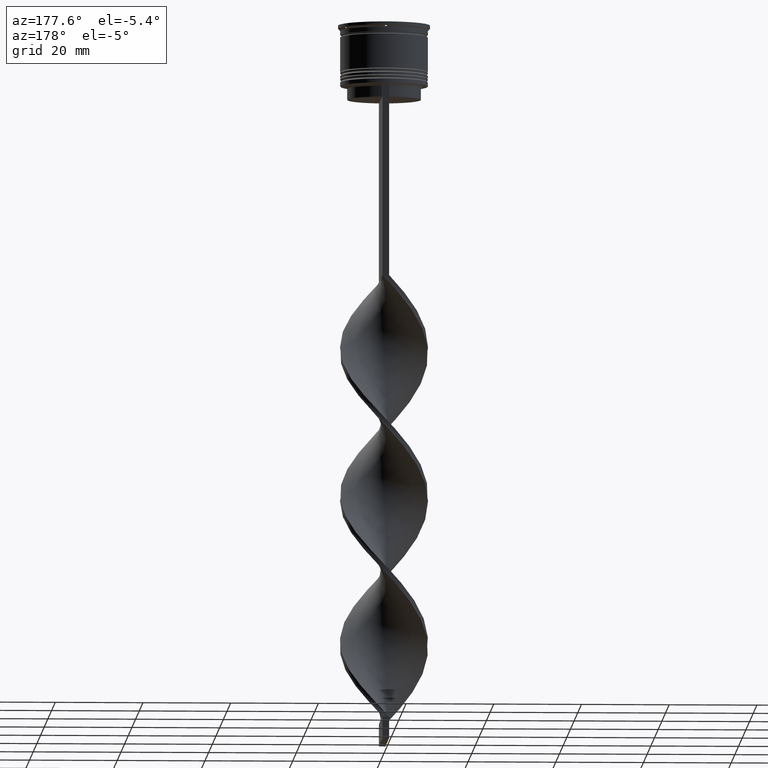
[diagram: clean part render]
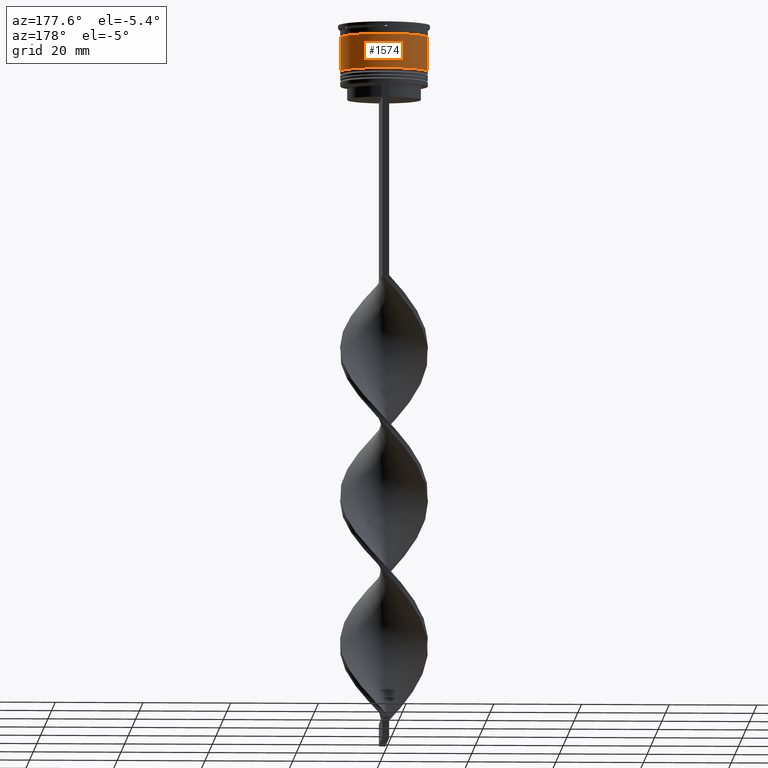
[diagram: same view with one face highlighted and labeled with its STEP entity id]
A machine part, auxiliary view. The second image highlights one B-rep face of the part: STEP entity #1574.
In plain terms, the highlighted cylindrical surface (partial cylindrical patch) has radius 10 mm, axis along (-0, -0, 1).
Its self-contained STEP definition (entity closure, byte-faithful):
#104 = EDGE_CURVE ( 'NONE', #3472, #1056, #2361, .T. ) ;
#126 = AXIS2_PLACEMENT_3D ( 'NONE', #1318, #2220, #3410 ) ;
#293 = ORIENTED_EDGE ( 'NONE', *, *, #1813, .T. ) ;
#340 = ORIENTED_EDGE ( 'NONE', *, *, #2208, .F. ) ;
#378 = ORIENTED_EDGE ( 'NONE', *, *, #104, .F. ) ;
#390 = DIRECTION ( 'NONE',  ( 1.000000000000000000, 0.000000000000000000, 0.000000000000000000 ) ) ;
#443 = CARTESIAN_POINT ( 'NONE',  ( -10.00000000000000000, 1.224646799147353256E-15, 0.000000000000000000 ) ) ;
#464 = VECTOR ( 'NONE', #2294, 1000.000000000000000 ) ;
#726 = EDGE_LOOP ( 'NONE', ( #2157, #293, #378, #340 ) ) ;
#950 = LINE ( 'NONE', #1844, #985 ) ;
#985 = VECTOR ( 'NONE', #2724, 1000.000000000000000 ) ;
#1056 = VERTEX_POINT ( 'NONE', #2052 ) ;
#1139 = CARTESIAN_POINT ( 'NONE',  ( 9.999999999999998224, 0.000000000000000000, -2.700000000000001954 ) ) ;
#1318 = CARTESIAN_POINT ( 'NONE',  ( 0.000000000000000000, 0.000000000000000000, -2.700000000000001954 ) ) ;
#1574 = ADVANCED_FACE ( 'NONE', ( #2188 ), #2756, .T. ) ;
#1813 = EDGE_CURVE ( 'NONE', #2348, #1056, #3427, .T. ) ;
#1844 = CARTESIAN_POINT ( 'NONE',  ( 10.00000000000000000, 0.000000000000000000, 0.000000000000000000 ) ) ;
#1885 = CIRCLE ( 'NONE', #1939, 10.00000000000000178 ) ;
#1905 = DIRECTION ( 'NONE',  ( -0.000000000000000000, -0.000000000000000000, 1.000000000000000000 ) ) ;
#1939 = AXIS2_PLACEMENT_3D ( 'NONE', #2172, #2815, #2436 ) ;
#2052 = CARTESIAN_POINT ( 'NONE',  ( -9.999999999999998224, 1.224646799147353256E-15, -2.700000000000001954 ) ) ;
#2157 = ORIENTED_EDGE ( 'NONE', *, *, #3666, .T. ) ;
#2172 = CARTESIAN_POINT ( 'NONE',  ( 0.000000000000000000, 0.000000000000000000, -10.50000000000000000 ) ) ;
#2188 = FACE_OUTER_BOUND ( 'NONE', #726, .T. ) ;
#2208 = EDGE_CURVE ( 'NONE', #2630, #3472, #950, .T. ) ;
#2220 = DIRECTION ( 'NONE',  ( -0.000000000000000000, -0.000000000000000000, 1.000000000000000000 ) ) ;
#2294 = DIRECTION ( 'NONE',  ( -0.000000000000000000, -0.000000000000000000, 1.000000000000000000 ) ) ;
#2348 = VERTEX_POINT ( 'NONE', #2994 ) ;
#2361 = CIRCLE ( 'NONE', #126, 9.999999999999998224 ) ;
#2436 = DIRECTION ( 'NONE',  ( 1.000000000000000000, 0.000000000000000000, 0.000000000000000000 ) ) ;
#2527 = CARTESIAN_POINT ( 'NONE',  ( 0.000000000000000000, 0.000000000000000000, 0.000000000000000000 ) ) ;
#2630 = VERTEX_POINT ( 'NONE', #3531 ) ;
#2724 = DIRECTION ( 'NONE',  ( -0.000000000000000000, -0.000000000000000000, 1.000000000000000000 ) ) ;
#2756 = CYLINDRICAL_SURFACE ( 'NONE', #3250, 10.00000000000000000 ) ;
#2815 = DIRECTION ( 'NONE',  ( -0.000000000000000000, -0.000000000000000000, 1.000000000000000000 ) ) ;
#2994 = CARTESIAN_POINT ( 'NONE',  ( -10.00000000000000178, 1.224646799147353454E-15, -10.50000000000000000 ) ) ;
#3250 = AXIS2_PLACEMENT_3D ( 'NONE', #2527, #1905, #390 ) ;
#3410 = DIRECTION ( 'NONE',  ( 1.000000000000000000, 0.000000000000000000, 0.000000000000000000 ) ) ;
#3427 = LINE ( 'NONE', #443, #464 ) ;
#3472 = VERTEX_POINT ( 'NONE', #1139 ) ;
#3531 = CARTESIAN_POINT ( 'NONE',  ( 10.00000000000000178, 0.000000000000000000, -10.50000000000000000 ) ) ;
#3666 = EDGE_CURVE ( 'NONE', #2630, #2348, #1885, .T. ) ;